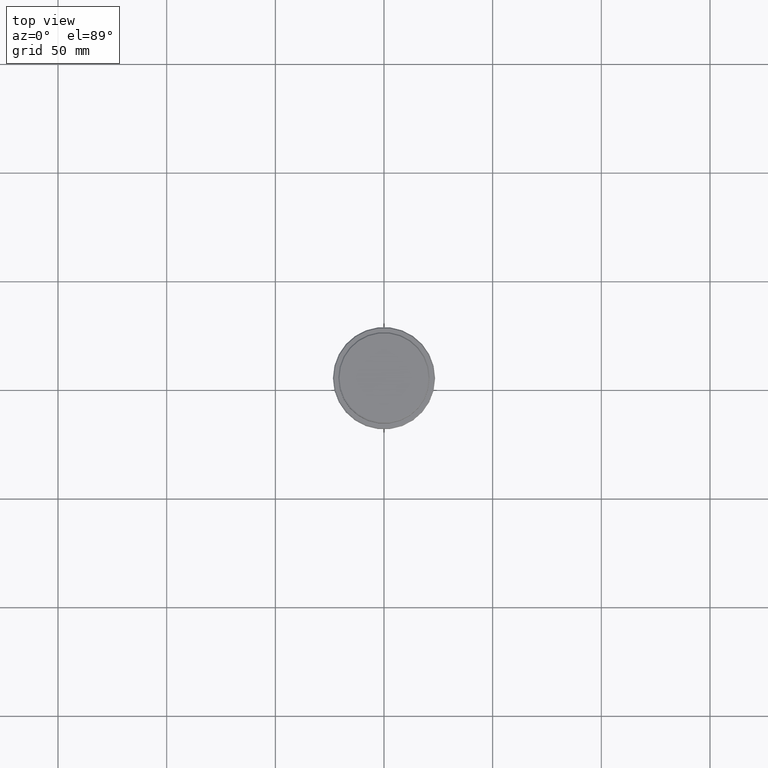
[diagram: clean part render]
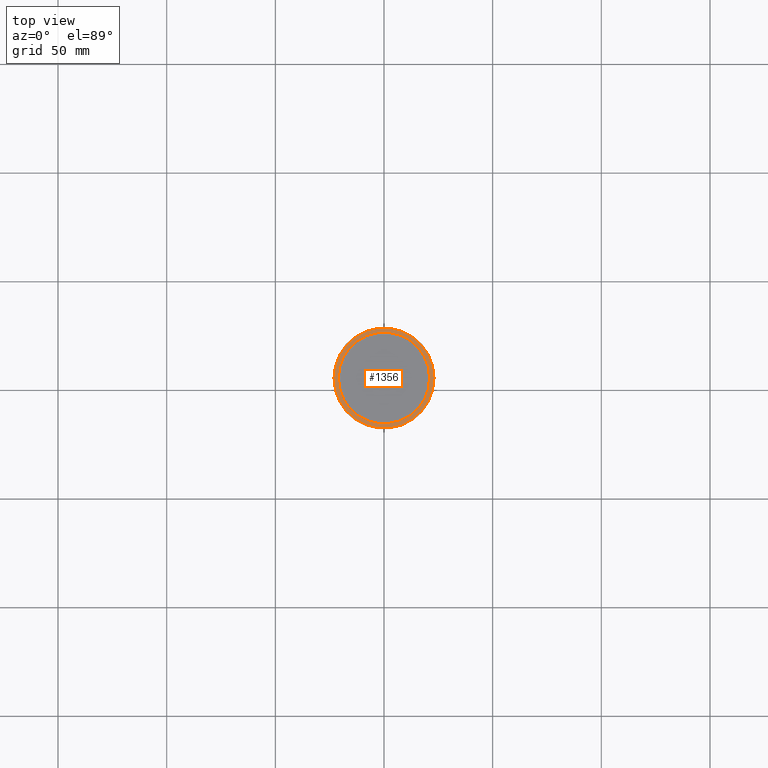
[diagram: same view with one face highlighted and labeled with its STEP entity id]
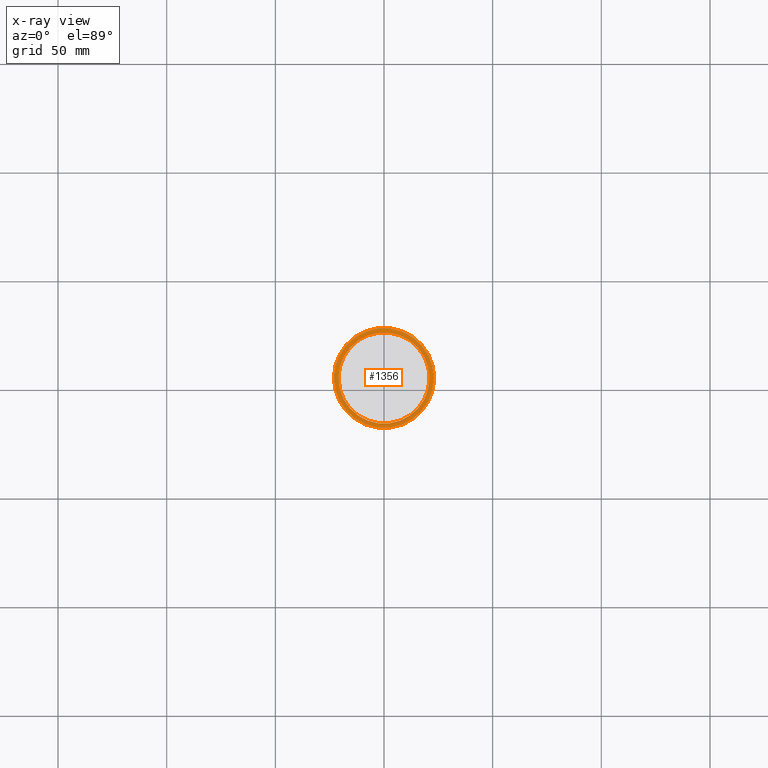
[diagram: x-ray of the same camera — body ghosted, the highlighted face saturated]
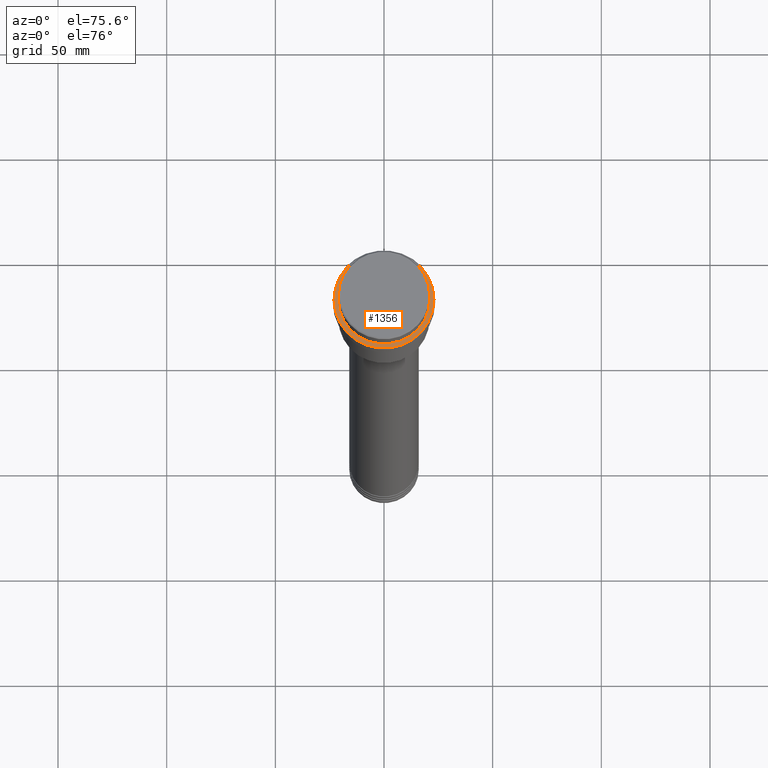
[diagram: same view with one face highlighted and labeled with its STEP entity id]
A machine part, top view. The second image highlights one B-rep face of the part: STEP entity #1356.
The next image is the same camera in x-ray: the body ghosted, the highlighted face saturated — about 0% of this face is hidden behind the body in this view.
A second angle (auxiliary view) of the same face is appended — the face is thin or edge-on in the first view.
In plain terms, the highlighted planar face has unit normal (0, -0, 1).
Its self-contained STEP definition (entity closure, byte-faithful):
#1 = FACE_BOUND ( 'NONE', #271, .T. ) ;
#22 = CIRCLE ( 'NONE', #725, 23.00000000000005329 ) ;
#54 = ORIENTED_EDGE ( 'NONE', *, *, #1289, .T. ) ;
#87 = CARTESIAN_POINT ( 'NONE',  ( 0.000000000000000000, 0.000000000000000000, -9.000000000000000000 ) ) ;
#122 = CIRCLE ( 'NONE', #536, 20.99999999999999289 ) ;
#123 = FACE_OUTER_BOUND ( 'NONE', #889, .T. ) ;
#179 = DIRECTION ( 'NONE',  ( 1.000000000000000000, 0.000000000000000000, 0.000000000000000000 ) ) ;
#247 = DIRECTION ( 'NONE',  ( -0.000000000000000000, -0.000000000000000000, 1.000000000000000000 ) ) ;
#271 = EDGE_LOOP ( 'NONE', ( #54, #513 ) ) ;
#318 = DIRECTION ( 'NONE',  ( 1.000000000000000000, 0.000000000000000000, 0.000000000000000000 ) ) ;
#338 = PLANE ( 'NONE',  #863 ) ;
#420 = VERTEX_POINT ( 'NONE', #1396 ) ;
#448 = DIRECTION ( 'NONE',  ( 0.000000000000000000, -0.000000000000000000, 1.000000000000000000 ) ) ;
#459 = VERTEX_POINT ( 'NONE', #571 ) ;
#508 = CIRCLE ( 'NONE', #1042, 23.00000000000005329 ) ;
#511 = DIRECTION ( 'NONE',  ( 0.000000000000000000, 0.000000000000000000, -1.000000000000000000 ) ) ;
#513 = ORIENTED_EDGE ( 'NONE', *, *, #1190, .T. ) ;
#536 = AXIS2_PLACEMENT_3D ( 'NONE', #87, #511, #1380 ) ;
#571 = CARTESIAN_POINT ( 'NONE',  ( -20.99999999999999289, 2.571758278209440872E-15, -9.000000000000000000 ) ) ;
#590 = EDGE_CURVE ( 'NONE', #614, #959, #508, .T. ) ;
#614 = VERTEX_POINT ( 'NONE', #1322 ) ;
#621 = DIRECTION ( 'NONE',  ( -0.000000000000000000, -0.000000000000000000, 1.000000000000000000 ) ) ;
#678 = DIRECTION ( 'NONE',  ( 1.000000000000000000, 0.000000000000000000, 0.000000000000000000 ) ) ;
#720 = CARTESIAN_POINT ( 'NONE',  ( 0.000000000000000000, 0.000000000000000000, -9.000000000000000000 ) ) ;
#725 = AXIS2_PLACEMENT_3D ( 'NONE', #1054, #621, #938 ) ;
#726 = AXIS2_PLACEMENT_3D ( 'NONE', #720, #1038, #179 ) ;
#741 = ORIENTED_EDGE ( 'NONE', *, *, #590, .T. ) ;
#743 = EDGE_CURVE ( 'NONE', #959, #614, #22, .T. ) ;
#756 = CARTESIAN_POINT ( 'NONE',  ( 0.000000000000000000, 20.49999999999999645, -9.000000000000000000 ) ) ;
#863 = AXIS2_PLACEMENT_3D ( 'NONE', #756, #448, #318 ) ;
#889 = EDGE_LOOP ( 'NONE', ( #741, #1003 ) ) ;
#938 = DIRECTION ( 'NONE',  ( 1.000000000000000000, 0.000000000000000000, 0.000000000000000000 ) ) ;
#959 = VERTEX_POINT ( 'NONE', #983 ) ;
#979 = CARTESIAN_POINT ( 'NONE',  ( 0.000000000000000000, 0.000000000000000000, -9.000000000000000000 ) ) ;
#983 = CARTESIAN_POINT ( 'NONE',  ( 23.00000000000005329, 2.847303808017599689E-15, -9.000000000000000000 ) ) ;
#1003 = ORIENTED_EDGE ( 'NONE', *, *, #743, .T. ) ;
#1038 = DIRECTION ( 'NONE',  ( 0.000000000000000000, 0.000000000000000000, -1.000000000000000000 ) ) ;
#1042 = AXIS2_PLACEMENT_3D ( 'NONE', #979, #247, #678 ) ;
#1054 = CARTESIAN_POINT ( 'NONE',  ( 0.000000000000000000, 0.000000000000000000, -9.000000000000000000 ) ) ;
#1190 = EDGE_CURVE ( 'NONE', #459, #420, #1349, .T. ) ;
#1289 = EDGE_CURVE ( 'NONE', #420, #459, #122, .T. ) ;
#1322 = CARTESIAN_POINT ( 'NONE',  ( -23.00000000000005329, 0.000000000000000000, -9.000000000000000000 ) ) ;
#1349 = CIRCLE ( 'NONE', #726, 20.99999999999999289 ) ;
#1356 = ADVANCED_FACE ( 'NONE', ( #123, #1 ), #338, .T. ) ;
#1380 = DIRECTION ( 'NONE',  ( 1.000000000000000000, 0.000000000000000000, 0.000000000000000000 ) ) ;
#1396 = CARTESIAN_POINT ( 'NONE',  ( 20.99999999999999289, 0.000000000000000000, -9.000000000000000000 ) ) ;